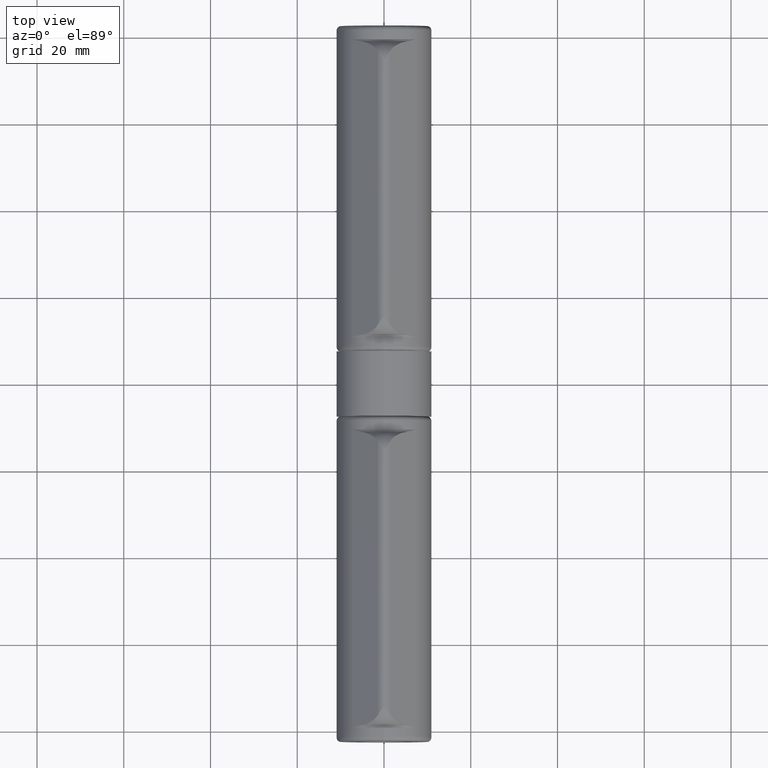
[diagram: clean part render]
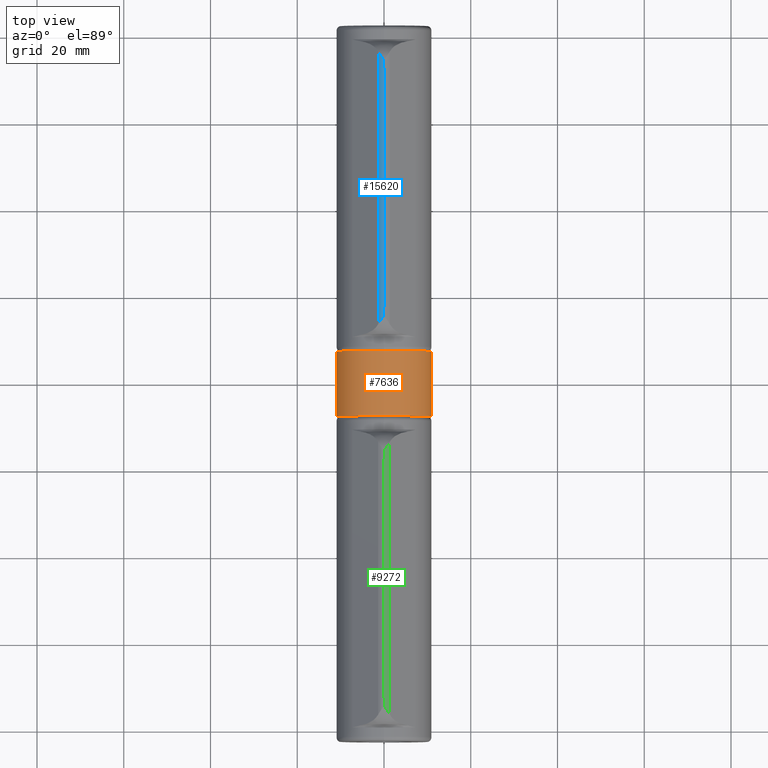
[diagram: same view with three faces highlighted in distinct colors, each labeled with its STEP entity id]
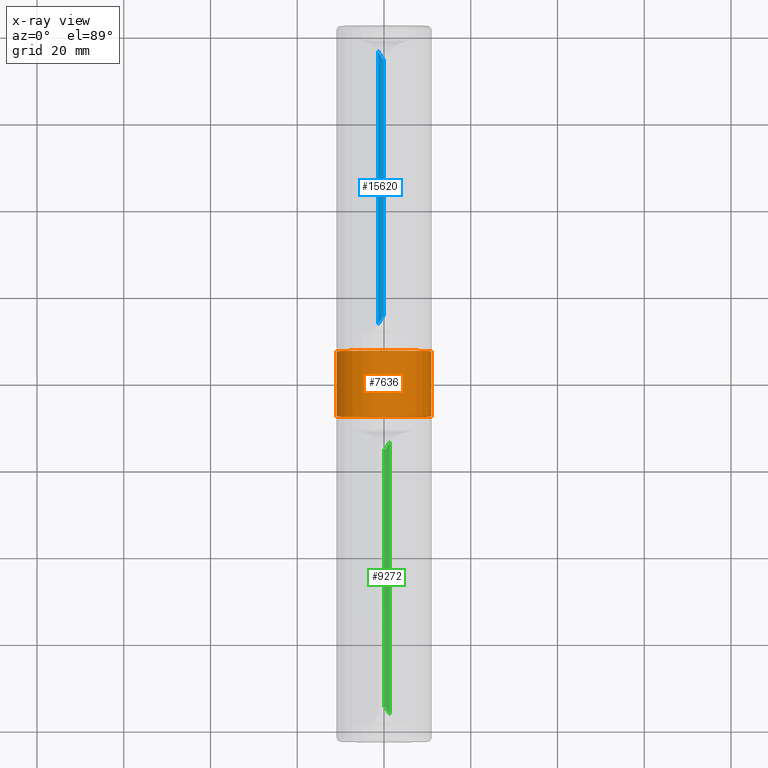
[diagram: x-ray of the same camera — body ghosted, the three highlighted faces saturated]
A machine part, top view with three faces highlighted in distinct colors.
The next image is the same camera in x-ray (body ghosted, the three faces saturated) — at least one of them is partly hidden behind the body in this view.
Their STEP definitions:

[orange] entity #7636 — the highlighted cylindrical surface (bore or boss wall) has radius 11 mm, axis along (-0, -1, -0).
#403 = CARTESIAN_POINT ( 'NONE',  ( 0.000000000000000000, 7.500000000000000000, 0.000000000000000000 ) ) ;
#779 = DIRECTION ( 'NONE',  ( 0.000000000000000000, 0.000000000000000000, 1.000000000000000000 ) ) ;
#1284 = EDGE_CURVE ( 'NONE', #15885, #15885, #5632, .T. ) ;
#1290 = VERTEX_POINT ( 'NONE', #3219 ) ;
#1682 = DIRECTION ( 'NONE',  ( 0.000000000000000000, 0.000000000000000000, 1.000000000000000000 ) ) ;
#3219 = CARTESIAN_POINT ( 'NONE',  ( 0.000000000000000000, 7.500000000000000000, 11.00000000000000178 ) ) ;
#3935 = ORIENTED_EDGE ( 'NONE', *, *, #9998, .F. ) ;
#4589 = CYLINDRICAL_SURFACE ( 'NONE', #6411, 11.00000000000000178 ) ;
#4694 = EDGE_LOOP ( 'NONE', ( #3935 ) ) ;
#5632 = CIRCLE ( 'NONE', #7320, 11.00000000000000178 ) ;
#5845 = DIRECTION ( 'NONE',  ( 0.000000000000000000, 0.000000000000000000, -1.000000000000000000 ) ) ;
#6411 = AXIS2_PLACEMENT_3D ( 'NONE', #13336, #12138, #5845 ) ;
#7320 = AXIS2_PLACEMENT_3D ( 'NONE', #10676, #14278, #779 ) ;
#7636 = ADVANCED_FACE ( 'NONE', ( #15254, #11867 ), #4589, .T. ) ;
#9998 = EDGE_CURVE ( 'NONE', #1290, #1290, #13623, .T. ) ;
#10032 = EDGE_LOOP ( 'NONE', ( #12934 ) ) ;
#10522 = DIRECTION ( 'NONE',  ( 0.000000000000000000, 1.000000000000000000, 0.000000000000000000 ) ) ;
#10676 = CARTESIAN_POINT ( 'NONE',  ( 0.000000000000000000, -7.500000000000000000, 0.000000000000000000 ) ) ;
#10971 = CARTESIAN_POINT ( 'NONE',  ( 0.000000000000000000, -7.500000000000000000, 11.00000000000000178 ) ) ;
#11867 = FACE_OUTER_BOUND ( 'NONE', #10032, .T. ) ;
#12138 = DIRECTION ( 'NONE',  ( -0.000000000000000000, -1.000000000000000000, -0.000000000000000000 ) ) ;
#12934 = ORIENTED_EDGE ( 'NONE', *, *, #1284, .T. ) ;
#13336 = CARTESIAN_POINT ( 'NONE',  ( 0.000000000000000000, 7.500000000000000000, 0.000000000000000000 ) ) ;
#13623 = CIRCLE ( 'NONE', #16204, 11.00000000000000178 ) ;
#14278 = DIRECTION ( 'NONE',  ( 0.000000000000000000, 1.000000000000000000, 0.000000000000000000 ) ) ;
#15254 = FACE_OUTER_BOUND ( 'NONE', #4694, .T. ) ;
#15885 = VERTEX_POINT ( 'NONE', #10971 ) ;
#16204 = AXIS2_PLACEMENT_3D ( 'NONE', #403, #10522, #1682 ) ;

[blue] entity #15620 — the highlighted cylindrical surface (edge-blend (fillet) strip) has radius 2 mm, axis along (0, 1, 0).
#514 = DIRECTION ( 'NONE',  ( -2.736911063134408342E-47, -1.000000000000000000, -1.387778780781456029E-16 ) ) ;
#623 = CARTESIAN_POINT ( 'NONE',  ( 0.04019047952040150085, -29.41742430504418238, 13.99994231150114565 ) ) ;
#693 = CARTESIAN_POINT ( 'NONE',  ( 0.09167234762941740833, 29.50763856088576276, 13.99894086666715864 ) ) ;
#911 = CARTESIAN_POINT ( 'NONE',  ( 0.02500000000000199979, 37.49999999999997868, 14.00000000000014744 ) ) ;
#1183 = CARTESIAN_POINT ( 'NONE',  ( 0.02500000000000199979, -27.49999999999996803, 14.00000000000014744 ) ) ;
#1544 = CARTESIAN_POINT ( 'NONE',  ( 0.5001282226513049656, -30.11005570449510671, 13.94633177584683992 ) ) ;
#1804 = CARTESIAN_POINT ( 'NONE',  ( 0.02500000000000151060, 27.49999999999996803, 12.00000000000014921 ) ) ;
#1814 = DIRECTION ( 'NONE',  ( 0.000000000000000000, -1.000000000000000000, 0.000000000000000000 ) ) ;
#1862 = CARTESIAN_POINT ( 'NONE',  ( 1.351001462184567181, 37.49999999999997868, 13.49723749695393238 ) ) ;
#2358 = DIRECTION ( 'NONE',  ( 0.000000000000000000, 0.000000000000000000, -1.000000000000000000 ) ) ;
#2501 = EDGE_CURVE ( 'NONE', #11583, #13789, #2867, .T. ) ;
#2744 = AXIS2_PLACEMENT_3D ( 'NONE', #3932, #7476, #7533 ) ;
#2867 = CIRCLE ( 'NONE', #2744, 2.000000000000019096 ) ;
#3023 = EDGE_CURVE ( 'NONE', #10565, #11583, #3246, .T. ) ;
#3246 = LINE ( 'NONE', #911, #4832 ) ;
#3350 = CARTESIAN_POINT ( 'NONE',  ( 0.3265468217388748373, 29.85334104575036562, 13.97802397674086805 ) ) ;
#3478 = CARTESIAN_POINT ( 'NONE',  ( 1.351001462188411884, 31.45793136768487841, 13.49723749695052888 ) ) ;
#3811 = CARTESIAN_POINT ( 'NONE',  ( 0.04019047952005989910, -27.49999999999996803, 13.99994231150114565 ) ) ;
#3819 = LINE ( 'NONE', #14602, #6336 ) ;
#3878 = DIRECTION ( 'NONE',  ( 2.736911063134408342E-47, -1.000000000000000000, 1.387778780781456029E-16 ) ) ;
#3932 = CARTESIAN_POINT ( 'NONE',  ( 0.02500000000000151060, -27.49999999999996803, 12.00000000000014921 ) ) ;
#4023 = VECTOR ( 'NONE', #3878, 1000.000000000000000 ) ;
#4024 = CARTESIAN_POINT ( 'NONE',  ( 0.9500490946662319969, -30.79161573060290280, 13.78916174346658075 ) ) ;
#4048 = VERTEX_POINT ( 'NONE', #14091 ) ;
#4268 = FACE_OUTER_BOUND ( 'NONE', #8616, .T. ) ;
#4271 = EDGE_CURVE ( 'NONE', #13789, #14539, #10704, .T. ) ;
#4448 = CARTESIAN_POINT ( 'NONE',  ( 0.02500000000000199979, 27.49999999999996803, 14.00000000000014744 ) ) ;
#4549 = VERTEX_POINT ( 'NONE', #3478 ) ;
#4635 = CARTESIAN_POINT ( 'NONE',  ( 0.04019047952005964930, 27.49999999999996803, 13.99994231150114565 ) ) ;
#4651 = CARTESIAN_POINT ( 'NONE',  ( 0.1794816681762362864, -29.63700997572519569, 13.99424203055538563 ) ) ;
#4672 = CARTESIAN_POINT ( 'NONE',  ( 0.06995353398951929813, 29.47496614063709330, 13.99950784628994427 ) ) ;
#4832 = VECTOR ( 'NONE', #11201, 1000.000000000000000 ) ;
#5372 = VECTOR ( 'NONE', #1814, 1000.000000000000000 ) ;
#5805 = CARTESIAN_POINT ( 'NONE',  ( 0.1503508223253741949, 29.59422644235213795, 13.99628402106628577 ) ) ;
#5847 = EDGE_CURVE ( 'NONE', #6821, #10565, #12512, .T. ) ;
#5897 = CARTESIAN_POINT ( 'NONE',  ( 0.06268146068592776732, -29.46398372410524757, 13.99965685889269729 ) ) ;
#5912 = CARTESIAN_POINT ( 'NONE',  ( 1.160508044114101134, 31.12484675074087193, 13.66594456674962288 ) ) ;
#5967 = CARTESIAN_POINT ( 'NONE',  ( 0.5013659999294557412, 30.11189442064635458, 13.94605056130607856 ) ) ;
#6336 = VECTOR ( 'NONE', #14821, 1000.000000000000000 ) ;
#6622 = ORIENTED_EDGE ( 'NONE', *, *, #6713, .T. ) ;
#6662 = CARTESIAN_POINT ( 'NONE',  ( 1.160990710306340379, -31.12569070999826337, 13.66551710211787274 ) ) ;
#6713 = EDGE_CURVE ( 'NONE', #10240, #6821, #3819, .T. ) ;
#6807 = ORIENTED_EDGE ( 'NONE', *, *, #5847, .T. ) ;
#6821 = VERTEX_POINT ( 'NONE', #4635 ) ;
#6958 = DIRECTION ( 'NONE',  ( 0.000000000000000000, 0.000000000000000000, -1.000000000000000000 ) ) ;
#6968 = EDGE_CURVE ( 'NONE', #4549, #10240, #7652, .T. ) ;
#7050 = CARTESIAN_POINT ( 'NONE',  ( 0.1063434402202511342, 29.52929075759331212, 13.99839909054451859 ) ) ;
#7132 = CARTESIAN_POINT ( 'NONE',  ( 0.06989227749545190438, -29.47487302322435454, 13.99950916635974352 ) ) ;
#7156 = CARTESIAN_POINT ( 'NONE',  ( 0.2679075107740368500, 29.76702913599270417, 13.98607088621624150 ) ) ;
#7218 = CARTESIAN_POINT ( 'NONE',  ( 0.04019047952001048030, 29.41742430504418238, 13.99994231150114565 ) ) ;
#7341 = AXIS2_PLACEMENT_3D ( 'NONE', #1804, #514, #6958 ) ;
#7476 = DIRECTION ( 'NONE',  ( -2.736911063134408342E-47, 1.000000000000000000, -1.387778780781456029E-16 ) ) ;
#7533 = DIRECTION ( 'NONE',  ( 0.000000000000000000, 0.000000000000000000, 1.000000000000000000 ) ) ;
#7652 = B_SPLINE_CURVE_WITH_KNOTS ( 'NONE', 3,
 ( #13463, #5912, #12098, #12216, #5967, #3350, #7156, #9700, #5805, #7050, #693, #4672, #10989, #10931, #9595, #7218 ),
 .UNSPECIFIED., .F., .F.,
 ( 4, 2, 2, 2, 2, 2, 2, 4 ),
 ( 4.340072789026435512E-07, 0.001240519005735376840, 0.001860561504963609064, 0.002170582754577720947, 0.002325593379384781334, 0.002403098691788306974, 0.002441851347990074347, 0.002480604004191841721 ),
 .UNSPECIFIED. ) ;
#7843 = CARTESIAN_POINT ( 'NONE',  ( 0.6152469644736953125, -30.28189699773152910, 13.91463114303691384 ) ) ;
#8200 = ORIENTED_EDGE ( 'NONE', *, *, #9520, .F. ) ;
#8319 = ORIENTED_EDGE ( 'NONE', *, *, #3023, .T. ) ;
#8616 = EDGE_LOOP ( 'NONE', ( #8319, #11090, #8821, #11971, #8200, #10472, #6622, #6807 ) ) ;
#8755 = DIRECTION ( 'NONE',  ( 0.000000000000000000, -1.000000000000000000, 0.000000000000000000 ) ) ;
#8821 = ORIENTED_EDGE ( 'NONE', *, *, #4271, .T. ) ;
#9520 = EDGE_CURVE ( 'NONE', #4549, #4048, #12247, .T. ) ;
#9595 = CARTESIAN_POINT ( 'NONE',  ( 0.04019047941068257940, 29.43061954580054618, 13.99994231150215107 ) ) ;
#9626 = CARTESIAN_POINT ( 'NONE',  ( 0.1062027294749848944, -29.52908258808933084, 13.99840458350219485 ) ) ;
#9700 = CARTESIAN_POINT ( 'NONE',  ( 0.1797755674986132590, 29.63744201227837038, 13.99422038142039071 ) ) ;
#10182 = EDGE_CURVE ( 'NONE', #14539, #4048, #12736, .T. ) ;
#10240 = VERTEX_POINT ( 'NONE', #11769 ) ;
#10472 = ORIENTED_EDGE ( 'NONE', *, *, #6968, .T. ) ;
#10565 = VERTEX_POINT ( 'NONE', #4448 ) ;
#10704 = LINE ( 'NONE', #12520, #4023 ) ;
#10910 = CARTESIAN_POINT ( 'NONE',  ( 0.1501165675791671927, -29.59388185887184619, 13.99629779718921796 ) ) ;
#10931 = CARTESIAN_POINT ( 'NONE',  ( 0.04891763800801343653, 29.44185033603773505, 13.99986890743364043 ) ) ;
#10962 = CARTESIAN_POINT ( 'NONE',  ( 0.04019047954757450775, -29.43071537508479096, 13.99994231150093604 ) ) ;
#10989 = CARTESIAN_POINT ( 'NONE',  ( 0.06272908214779958358, 29.46405779638805100, 13.99965602459222147 ) ) ;
#11090 = ORIENTED_EDGE ( 'NONE', *, *, #2501, .T. ) ;
#11201 = DIRECTION ( 'NONE',  ( 0.000000000000000000, -1.000000000000000000, 0.000000000000000000 ) ) ;
#11545 = CARTESIAN_POINT ( 'NONE',  ( 0.04019047952040150085, -29.41742430504418238, 13.99994231150114565 ) ) ;
#11583 = VERTEX_POINT ( 'NONE', #1183 ) ;
#11769 = CARTESIAN_POINT ( 'NONE',  ( 0.04019047952001048030, 29.41742430504418238, 13.99994231150114565 ) ) ;
#11971 = ORIENTED_EDGE ( 'NONE', *, *, #10182, .T. ) ;
#12098 = CARTESIAN_POINT ( 'NONE',  ( 0.9495471721051216285, 30.79085620622731057, 13.78933436052301786 ) ) ;
#12190 = CARTESIAN_POINT ( 'NONE',  ( 0.3258129472130592563, -29.85225974672248128, 13.97813046162207584 ) ) ;
#12216 = CARTESIAN_POINT ( 'NONE',  ( 0.6156692077778787020, 30.28253752962169543, 13.91448063943787972 ) ) ;
#12244 = CARTESIAN_POINT ( 'NONE',  ( 0.04890691206234330790, -29.44183058075964965, 13.99986897204584047 ) ) ;
#12247 = LINE ( 'NONE', #1862, #5372 ) ;
#12512 = CIRCLE ( 'NONE', #7341, 2.000000000000019096 ) ;
#12520 = CARTESIAN_POINT ( 'NONE',  ( 0.04019047952005964930, -28.45871215252204678, 13.99994231150114565 ) ) ;
#12736 = B_SPLINE_CURVE_WITH_KNOTS ( 'NONE', 3,
 ( #623, #10962, #12244, #5897, #7132, #14730, #9626, #10910, #4651, #15996, #12190, #1544, #7843, #4024, #6662, #14206 ),
 .UNSPECIFIED., .F., .F.,
 ( 4, 2, 2, 2, 2, 2, 2, 4 ),
 ( 1.956890816741761036E-07, 3.924361120425088375E-05, 7.829153332682759262E-05, 0.0001563873775719809155, 0.0003125790660622877509, 0.0006249624430428928025, 0.001249729197004095099, 0.002499262704926489935 ),
 .UNSPECIFIED. ) ;
#13463 = CARTESIAN_POINT ( 'NONE',  ( 1.351001462188411884, 31.45793136768487841, 13.49723749695052888 ) ) ;
#13695 = CYLINDRICAL_SURFACE ( 'NONE', #14321, 2.000000000000019096 ) ;
#13789 = VERTEX_POINT ( 'NONE', #3811 ) ;
#14091 = CARTESIAN_POINT ( 'NONE',  ( 1.351001462192529479, -31.45793136769203713, 13.49723749694688202 ) ) ;
#14206 = CARTESIAN_POINT ( 'NONE',  ( 1.351001462192529479, -31.45793136769203713, 13.49723749694688202 ) ) ;
#14321 = AXIS2_PLACEMENT_3D ( 'NONE', #15019, #8755, #2358 ) ;
#14539 = VERTEX_POINT ( 'NONE', #11545 ) ;
#14602 = CARTESIAN_POINT ( 'NONE',  ( 0.04019047952005964930, 28.45871215252204678, 13.99994231150114565 ) ) ;
#14730 = CARTESIAN_POINT ( 'NONE',  ( 0.09156454698068348941, -29.50747831101477203, 13.99894423454602510 ) ) ;
#14821 = DIRECTION ( 'NONE',  ( -2.736911063134408342E-47, -1.000000000000000000, -1.387778780781456029E-16 ) ) ;
#15019 = CARTESIAN_POINT ( 'NONE',  ( 0.02500000000000151060, 37.49999999999997868, 12.00000000000014921 ) ) ;
#15620 = ADVANCED_FACE ( 'NONE', ( #4268 ), #13695, .T. ) ;
#15996 = CARTESIAN_POINT ( 'NONE',  ( 0.2673847846808812823, -29.76626032181185977, 13.98613017325101104 ) ) ;

[green] entity #9272 — the highlighted cylindrical surface (edge-blend (fillet) strip) has radius 2 mm, axis along (0, 1, 0).
#24 = LINE ( 'NONE', #6933, #4970 ) ;
#77 = DIRECTION ( 'NONE',  ( 0.000000000000000000, 0.000000000000000000, 1.000000000000000000 ) ) ;
#275 = DIRECTION ( 'NONE',  ( 0.000000000000000000, 0.000000000000000000, -1.000000000000000000 ) ) ;
#674 = AXIS2_PLACEMENT_3D ( 'NONE', #4462, #13039, #14424 ) ;
#1210 = CARTESIAN_POINT ( 'NONE',  ( -0.5013659999278696766, -30.11189442064398847, 13.94605056130644449 ) ) ;
#1260 = EDGE_LOOP ( 'NONE', ( #2328, #8681, #3329, #6407, #10239, #10656, #13148, #14873 ) ) ;
#1320 = CARTESIAN_POINT ( 'NONE',  ( -0.9495471721021997435, -30.79085620622275243, 13.78933436052441586 ) ) ;
#1592 = EDGE_CURVE ( 'NONE', #2510, #3011, #13567, .T. ) ;
#1595 = DIRECTION ( 'NONE',  ( 0.000000000000000000, -1.000000000000000000, 0.000000000000000000 ) ) ;
#1803 = AXIS2_PLACEMENT_3D ( 'NONE', #12874, #7787, #275 ) ;
#1875 = DIRECTION ( 'NONE',  ( -0.000000000000000000, 1.000000000000000000, -1.387778780781456029E-16 ) ) ;
#2173 = VERTEX_POINT ( 'NONE', #7705 ) ;
#2293 = CARTESIAN_POINT ( 'NONE',  ( -0.04019047952005989910, 27.49999999999999645, 13.99994231150114743 ) ) ;
#2328 = ORIENTED_EDGE ( 'NONE', *, *, #9249, .T. ) ;
#2388 = CARTESIAN_POINT ( 'NONE',  ( -0.1501165675785064435, 29.59388185887087275, 13.99629779718925526 ) ) ;
#2433 = CARTESIAN_POINT ( 'NONE',  ( -0.04019047952007343688, -29.41742430504415395, 13.99994231150114743 ) ) ;
#2472 = CARTESIAN_POINT ( 'NONE',  ( -0.06272908214756188483, -29.46405779638783073, 13.99965602459222325 ) ) ;
#2510 = VERTEX_POINT ( 'NONE', #5612 ) ;
#2582 = DIRECTION ( 'NONE',  ( 0.000000000000000000, -1.000000000000000000, 0.000000000000000000 ) ) ;
#2604 = LINE ( 'NONE', #8167, #12648 ) ;
#2764 = CARTESIAN_POINT ( 'NONE',  ( -1.351001462184453716, 31.45793136767793641, 13.49723749695402653 ) ) ;
#2793 = LINE ( 'NONE', #12692, #14608 ) ;
#3011 = VERTEX_POINT ( 'NONE', #6012 ) ;
#3146 = EDGE_CURVE ( 'NONE', #13226, #12968, #15082, .T. ) ;
#3329 = ORIENTED_EDGE ( 'NONE', *, *, #11021, .F. ) ;
#3649 = CARTESIAN_POINT ( 'NONE',  ( -0.04890691206213957504, 29.44183058075941517, 13.99986897204584402 ) ) ;
#3763 = CARTESIAN_POINT ( 'NONE',  ( -0.04019047952009952712, 29.41742430504415395, 13.99994231150114743 ) ) ;
#3860 = CARTESIAN_POINT ( 'NONE',  ( -1.160990710298515305, 31.12569070998557308, 13.66551710212297444 ) ) ;
#4008 = EDGE_CURVE ( 'NONE', #12126, #15576, #7732, .T. ) ;
#4408 = DIRECTION ( 'NONE',  ( 0.000000000000000000, 1.000000000000000000, 1.387778780781456029E-16 ) ) ;
#4462 = CARTESIAN_POINT ( 'NONE',  ( -0.02499999999999857198, 37.50000000000000711, 12.00000000000014921 ) ) ;
#4573 = CYLINDRICAL_SURFACE ( 'NONE', #674, 2.000000000000019096 ) ;
#4858 = CARTESIAN_POINT ( 'NONE',  ( -0.06989227749522845812, 29.47487302322390690, 13.99950916635974352 ) ) ;
#4970 = VECTOR ( 'NONE', #4408, 1000.000000000000000 ) ;
#5020 = CARTESIAN_POINT ( 'NONE',  ( -0.04019047954743813073, 29.43071537508452806, 13.99994231150093960 ) ) ;
#5110 = CARTESIAN_POINT ( 'NONE',  ( -0.02499999999999857198, -27.49999999999999645, 12.00000000000014921 ) ) ;
#5612 = CARTESIAN_POINT ( 'NONE',  ( -0.04019047952009952712, 29.41742430504415395, 13.99994231150114743 ) ) ;
#6012 = CARTESIAN_POINT ( 'NONE',  ( -1.351001462184453716, 31.45793136767793641, 13.49723749695402653 ) ) ;
#6291 = CARTESIAN_POINT ( 'NONE',  ( -0.1503508223249185871, -29.59422644235143096, 13.99628402106631064 ) ) ;
#6340 = CARTESIAN_POINT ( 'NONE',  ( -0.02499999999999857198, -27.49999999999999645, 14.00000000000014744 ) ) ;
#6355 = CARTESIAN_POINT ( 'NONE',  ( -0.9500490946596809039, 30.79161573059275270, 13.78916174346962187 ) ) ;
#6407 = ORIENTED_EDGE ( 'NONE', *, *, #4008, .T. ) ;
#6933 = CARTESIAN_POINT ( 'NONE',  ( -0.04019047952005622149, 28.45871215252207520, 13.99994231150114743 ) ) ;
#7459 = EDGE_CURVE ( 'NONE', #2173, #8989, #16346, .T. ) ;
#7491 = CARTESIAN_POINT ( 'NONE',  ( -1.351001462184560298, -31.45793136767816023, 13.49723749695393415 ) ) ;
#7600 = CARTESIAN_POINT ( 'NONE',  ( -0.3265468217378423854, -29.85334104574883796, 13.97802397674102082 ) ) ;
#7705 = CARTESIAN_POINT ( 'NONE',  ( -1.351001462184560298, -31.45793136767816023, 13.49723749695393415 ) ) ;
#7732 = CIRCLE ( 'NONE', #1803, 2.000000000000019096 ) ;
#7787 = DIRECTION ( 'NONE',  ( 0.000000000000000000, -1.000000000000000000, -1.387778780781456029E-16 ) ) ;
#8167 = CARTESIAN_POINT ( 'NONE',  ( -0.04019047952005622149, -28.45871215252207520, 13.99994231150114743 ) ) ;
#8681 = ORIENTED_EDGE ( 'NONE', *, *, #3146, .T. ) ;
#8989 = VERTEX_POINT ( 'NONE', #2433 ) ;
#9245 = EDGE_CURVE ( 'NONE', #15576, #2510, #24, .T. ) ;
#9249 = EDGE_CURVE ( 'NONE', #8989, #13226, #2604, .T. ) ;
#9272 = ADVANCED_FACE ( 'NONE', ( #14637 ), #4573, .T. ) ;
#9882 = CARTESIAN_POINT ( 'NONE',  ( -0.09167234762916884327, -29.50763856088530801, 13.99894086666716220 ) ) ;
#9897 = CARTESIAN_POINT ( 'NONE',  ( -0.1062027294745217232, 29.52908258808868780, 13.99840458350222150 ) ) ;
#9996 = CARTESIAN_POINT ( 'NONE',  ( -0.06995353398937169398, -29.47496614063674514, 13.99950784628993894 ) ) ;
#10239 = ORIENTED_EDGE ( 'NONE', *, *, #9245, .T. ) ;
#10656 = ORIENTED_EDGE ( 'NONE', *, *, #1592, .T. ) ;
#11021 = EDGE_CURVE ( 'NONE', #12126, #12968, #2793, .T. ) ;
#11169 = CARTESIAN_POINT ( 'NONE',  ( -0.1794816681754331511, 29.63700997572399132, 13.99424203055544425 ) ) ;
#11213 = CARTESIAN_POINT ( 'NONE',  ( -0.1797755674980595908, -29.63744201227754616, 13.99422038142042979 ) ) ;
#11268 = CARTESIAN_POINT ( 'NONE',  ( -0.1063434402199356088, -29.52929075759279698, 13.99839909054452924 ) ) ;
#12126 = VERTEX_POINT ( 'NONE', #13480 ) ;
#12199 = CARTESIAN_POINT ( 'NONE',  ( -0.04019047952005621455, -27.49999999999999645, 13.99994231150114743 ) ) ;
#12373 = VECTOR ( 'NONE', #1595, 1000.000000000000000 ) ;
#12457 = CARTESIAN_POINT ( 'NONE',  ( -0.2673847846796222338, 29.76626032180998749, 13.98613017325115848 ) ) ;
#12492 = CARTESIAN_POINT ( 'NONE',  ( -0.04019047941057726780, -29.43061954580032591, 13.99994231150214752 ) ) ;
#12546 = CARTESIAN_POINT ( 'NONE',  ( -0.04891763800778976129, -29.44185033603763202, 13.99986890743364043 ) ) ;
#12584 = LINE ( 'NONE', #13986, #12373 ) ;
#12607 = CARTESIAN_POINT ( 'NONE',  ( -0.04019047952007343688, -29.41742430504415395, 13.99994231150114743 ) ) ;
#12648 = VECTOR ( 'NONE', #1875, 1000.000000000000000 ) ;
#12692 = CARTESIAN_POINT ( 'NONE',  ( -0.02499999999999857198, 37.50000000000000711, 14.00000000000014744 ) ) ;
#12874 = CARTESIAN_POINT ( 'NONE',  ( -0.02499999999999857198, 27.49999999999999645, 12.00000000000014921 ) ) ;
#12968 = VERTEX_POINT ( 'NONE', #6340 ) ;
#13039 = DIRECTION ( 'NONE',  ( 0.000000000000000000, -1.000000000000000000, 0.000000000000000000 ) ) ;
#13148 = ORIENTED_EDGE ( 'NONE', *, *, #13873, .T. ) ;
#13226 = VERTEX_POINT ( 'NONE', #12199 ) ;
#13480 = CARTESIAN_POINT ( 'NONE',  ( -0.02499999999999857198, 27.49999999999999645, 14.00000000000014744 ) ) ;
#13567 = B_SPLINE_CURVE_WITH_KNOTS ( 'NONE', 3,
 ( #3763, #5020, #3649, #13871, #4858, #14933, #9897, #2388, #11169, #12457, #13697, #14142, #14080, #6355, #3860, #2764 ),
 .UNSPECIFIED., .F., .F.,
 ( 4, 2, 2, 2, 2, 2, 2, 4 ),
 ( 1.956890824961047678E-07, 3.924361120489790850E-05, 7.829153332729972201E-05, 0.0001563873775721034032, 0.0003125790660617193037, 0.0006249624430409511048, 0.001249729196999415032, 0.002499262704916342670 ),
 .UNSPECIFIED. ) ;
#13697 = CARTESIAN_POINT ( 'NONE',  ( -0.3258129472115506853, 29.85225974672023952, 13.97813046162230677 ) ) ;
#13871 = CARTESIAN_POINT ( 'NONE',  ( -0.06268146068566451956, 29.46398372410489230, 13.99965685889269906 ) ) ;
#13873 = EDGE_CURVE ( 'NONE', #3011, #2173, #12584, .T. ) ;
#13986 = CARTESIAN_POINT ( 'NONE',  ( -1.351001462184561852, 37.50000000000000711, 13.49723749695393238 ) ) ;
#14080 = CARTESIAN_POINT ( 'NONE',  ( -0.6152469644705380603, 30.28189699772679333, 13.91463114303779669 ) ) ;
#14142 = CARTESIAN_POINT ( 'NONE',  ( -0.5001282226492080873, 30.11005570449196256, 13.94633177584731776 ) ) ;
#14424 = DIRECTION ( 'NONE',  ( 0.000000000000000000, 0.000000000000000000, -1.000000000000000000 ) ) ;
#14608 = VECTOR ( 'NONE', #2582, 1000.000000000000000 ) ;
#14637 = FACE_OUTER_BOUND ( 'NONE', #1260, .T. ) ;
#14873 = ORIENTED_EDGE ( 'NONE', *, *, #7459, .T. ) ;
#14933 = CARTESIAN_POINT ( 'NONE',  ( -0.09156454698033539286, 29.50747831101417518, 13.99894423454604109 ) ) ;
#15036 = CARTESIAN_POINT ( 'NONE',  ( -0.2679075107732014072, -29.76702913599145006, 13.98607088621633032 ) ) ;
#15082 = CIRCLE ( 'NONE', #15626, 2.000000000000019096 ) ;
#15209 = CARTESIAN_POINT ( 'NONE',  ( -0.6156692077759399195, -30.28253752961877865, 13.91448063943845348 ) ) ;
#15248 = DIRECTION ( 'NONE',  ( 0.000000000000000000, 1.000000000000000000, -1.387778780781456029E-16 ) ) ;
#15576 = VERTEX_POINT ( 'NONE', #2293 ) ;
#15626 = AXIS2_PLACEMENT_3D ( 'NONE', #5110, #15248, #77 ) ;
#16244 = CARTESIAN_POINT ( 'NONE',  ( -1.160508044110617698, -31.12484675073524443, 13.66594456675183267 ) ) ;
#16346 = B_SPLINE_CURVE_WITH_KNOTS ( 'NONE', 3,
 ( #7491, #16244, #1320, #15209, #1210, #7600, #15036, #11213, #6291, #11268, #9882, #9996, #2472, #12546, #12492, #12607 ),
 .UNSPECIFIED., .F., .F.,
 ( 4, 2, 2, 2, 2, 2, 2, 4 ),
 ( 4.340072874787880852E-07, 0.001240519005739843320, 0.001860561504966020546, 0.002170582754579108726, 0.002325593379385649129, 0.002403098691788918898, 0.002441851347990558335, 0.002480604004192197773 ),
 .UNSPECIFIED. ) ;